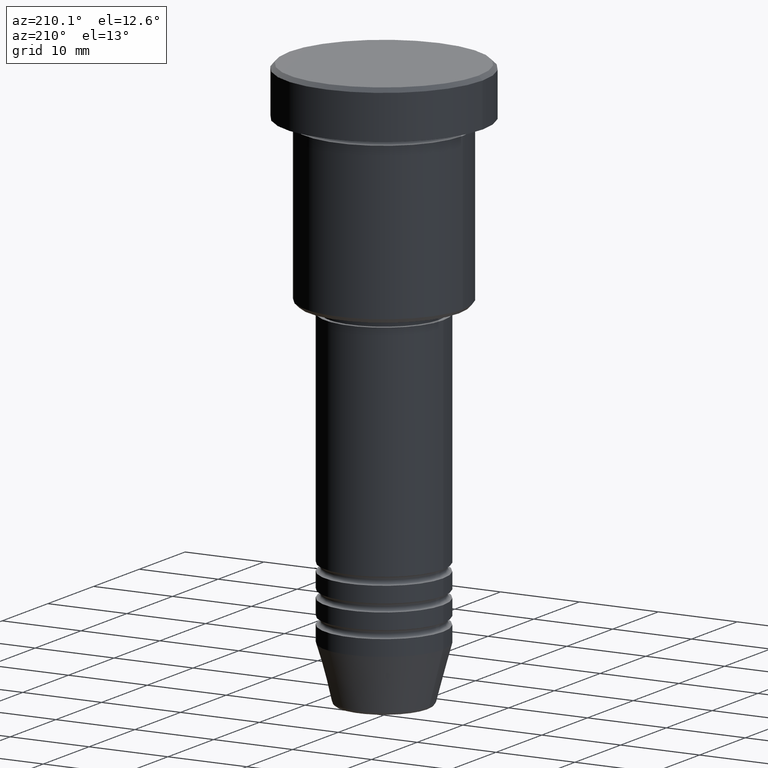
[diagram: clean part render]
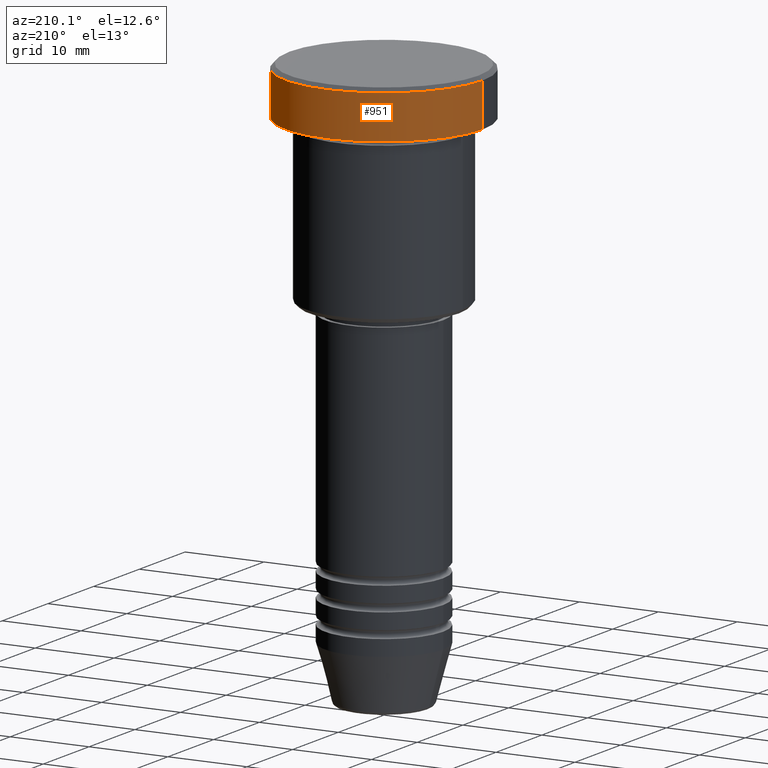
[diagram: same view with one face highlighted and labeled with its STEP entity id]
A machine part, auxiliary view. The second image highlights one B-rep face of the part: STEP entity #951.
In plain terms, the highlighted cylindrical surface (partial cylindrical patch) has radius 12.5 mm, axis along (-0, -0, 1).
Its self-contained STEP definition (entity closure, byte-faithful):
#38 = FACE_OUTER_BOUND ( 'NONE', #785, .T. ) ;
#40 = DIRECTION ( 'NONE',  ( -0.000000000000000000, -0.000000000000000000, 1.000000000000000000 ) ) ;
#56 = EDGE_CURVE ( 'NONE', #452, #474, #1091, .T. ) ;
#167 = ORIENTED_EDGE ( 'NONE', *, *, #56, .T. ) ;
#181 = AXIS2_PLACEMENT_3D ( 'NONE', #301, #478, #658 ) ;
#191 = DIRECTION ( 'NONE',  ( -0.000000000000000000, -0.000000000000000000, 1.000000000000000000 ) ) ;
#280 = VERTEX_POINT ( 'NONE', #1094 ) ;
#301 = CARTESIAN_POINT ( 'NONE',  ( 0.000000000000000000, 0.000000000000000000, 0.000000000000000000 ) ) ;
#314 = DIRECTION ( 'NONE',  ( 0.000000000000000000, 0.000000000000000000, -1.000000000000000000 ) ) ;
#408 = AXIS2_PLACEMENT_3D ( 'NONE', #610, #314, #960 ) ;
#420 = VECTOR ( 'NONE', #654, 1000.000000000000000 ) ;
#452 = VERTEX_POINT ( 'NONE', #690 ) ;
#459 = CIRCLE ( 'NONE', #724, 12.50000000000000000 ) ;
#474 = VERTEX_POINT ( 'NONE', #522 ) ;
#478 = DIRECTION ( 'NONE',  ( -0.000000000000000000, -0.000000000000000000, 1.000000000000000000 ) ) ;
#493 = ORIENTED_EDGE ( 'NONE', *, *, #715, .T. ) ;
#512 = CARTESIAN_POINT ( 'NONE',  ( 12.50000000000000000, 0.000000000000000000, -5.999999999999996447 ) ) ;
#522 = CARTESIAN_POINT ( 'NONE',  ( 12.50000000000000000, 0.000000000000000000, -0.5000000000000056621 ) ) ;
#558 = EDGE_CURVE ( 'NONE', #1033, #474, #1038, .T. ) ;
#559 = CARTESIAN_POINT ( 'NONE',  ( 12.50000000000000000, 0.000000000000000000, 0.000000000000000000 ) ) ;
#579 = EDGE_CURVE ( 'NONE', #280, #452, #753, .T. ) ;
#610 = CARTESIAN_POINT ( 'NONE',  ( 0.000000000000000000, 0.000000000000000000, -0.5000000000000056621 ) ) ;
#654 = DIRECTION ( 'NONE',  ( -0.000000000000000000, -0.000000000000000000, 1.000000000000000000 ) ) ;
#658 = DIRECTION ( 'NONE',  ( 1.000000000000000000, 0.000000000000000000, 0.000000000000000000 ) ) ;
#690 = CARTESIAN_POINT ( 'NONE',  ( -12.50000000000000000, 1.530808498934191521E-15, -0.5000000000000056621 ) ) ;
#715 = EDGE_CURVE ( 'NONE', #1033, #280, #459, .T. ) ;
#723 = CARTESIAN_POINT ( 'NONE',  ( 0.000000000000000000, 0.000000000000000000, -5.999999999999996447 ) ) ;
#724 = AXIS2_PLACEMENT_3D ( 'NONE', #723, #191, #1104 ) ;
#753 = LINE ( 'NONE', #1120, #420 ) ;
#761 = CYLINDRICAL_SURFACE ( 'NONE', #181, 12.50000000000000000 ) ;
#785 = EDGE_LOOP ( 'NONE', ( #493, #955, #167, #920 ) ) ;
#920 = ORIENTED_EDGE ( 'NONE', *, *, #558, .F. ) ;
#951 = ADVANCED_FACE ( 'NONE', ( #38 ), #761, .T. ) ;
#955 = ORIENTED_EDGE ( 'NONE', *, *, #579, .T. ) ;
#960 = DIRECTION ( 'NONE',  ( 1.000000000000000000, 0.000000000000000000, 0.000000000000000000 ) ) ;
#990 = VECTOR ( 'NONE', #40, 1000.000000000000000 ) ;
#1033 = VERTEX_POINT ( 'NONE', #512 ) ;
#1038 = LINE ( 'NONE', #559, #990 ) ;
#1091 = CIRCLE ( 'NONE', #408, 12.50000000000000000 ) ;
#1094 = CARTESIAN_POINT ( 'NONE',  ( -12.50000000000000000, 1.530808498934191521E-15, -5.999999999999996447 ) ) ;
#1104 = DIRECTION ( 'NONE',  ( 1.000000000000000000, 0.000000000000000000, 0.000000000000000000 ) ) ;
#1120 = CARTESIAN_POINT ( 'NONE',  ( -12.50000000000000000, 1.530808498934191521E-15, 0.000000000000000000 ) ) ;